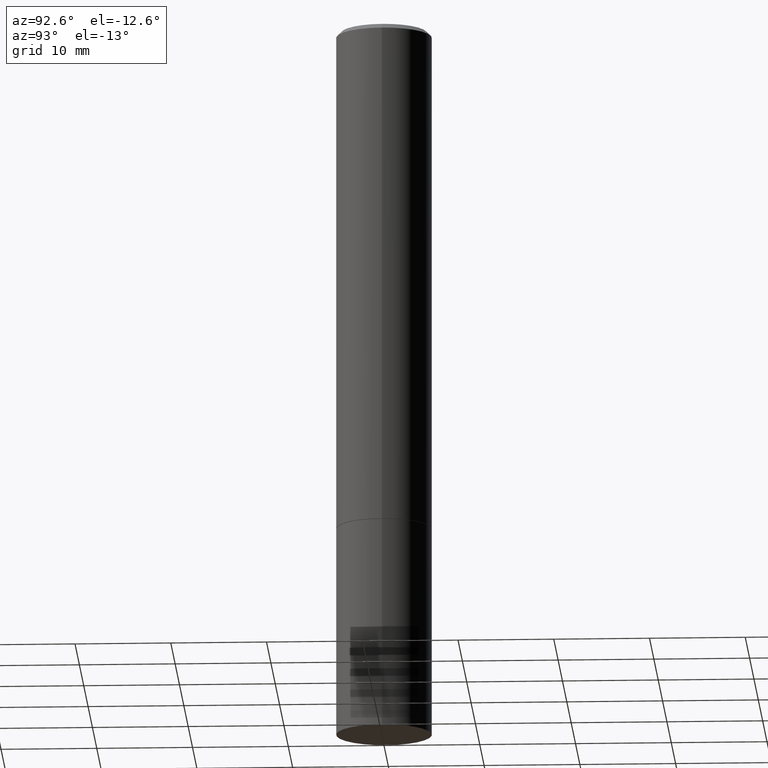
[diagram: clean part render]
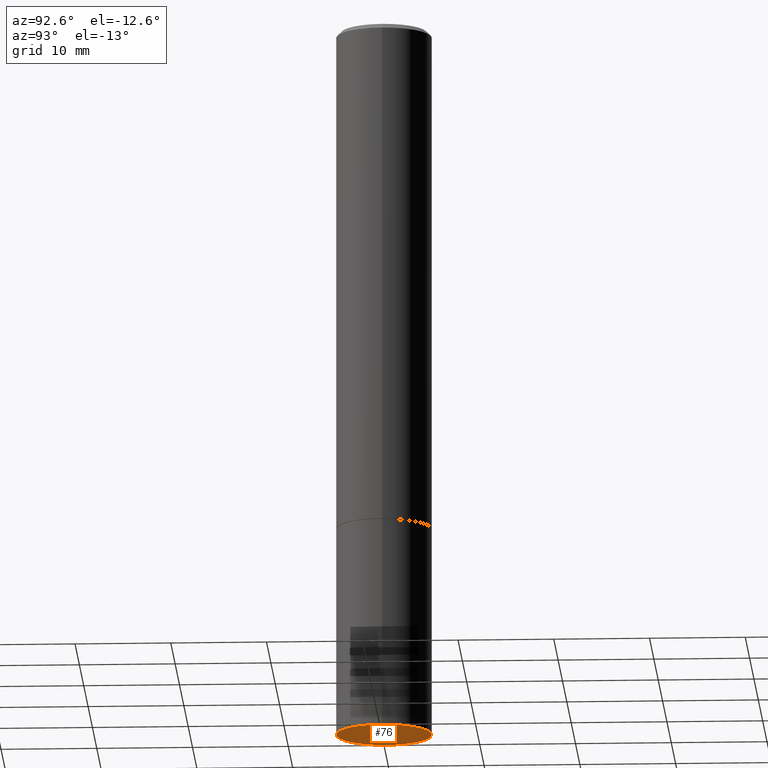
[diagram: same view with one face highlighted and labeled with its STEP entity id]
A machine part, auxiliary view. The second image highlights one B-rep face of the part: STEP entity #76.
In plain terms, the highlighted planar face has unit normal (0, -0, -1).
Its self-contained STEP definition (entity closure, byte-faithful):
#7 = PLANE ( 'NONE',  #114 ) ;
#42 = ORIENTED_EDGE ( 'NONE', *, *, #341, .F. ) ;
#43 = CARTESIAN_POINT ( 'NONE',  ( -0.1968500000000000250, -7.398956728206258518E-15, -2.952799999999999869 ) ) ;
#49 = CARTESIAN_POINT ( 'NONE',  ( 7.220980290903470182E-29, -1.030964609733603853E-14, -2.952799999999999869 ) ) ;
#73 = AXIS2_PLACEMENT_3D ( 'NONE', #49, #162, #278 ) ;
#76 = ADVANCED_FACE ( 'NONE', ( #94 ), #7, .T. ) ;
#78 = CARTESIAN_POINT ( 'NONE',  ( 7.220980290903470182E-29, -1.030964609733603853E-14, -2.952799999999999869 ) ) ;
#94 = FACE_OUTER_BOUND ( 'NONE', #234, .T. ) ;
#96 = CIRCLE ( 'NONE', #73, 0.1968500000000000250 ) ;
#104 = DIRECTION ( 'NONE',  ( -2.445468806185136597E-29, 3.491481338843145583E-15, 1.000000000000000000 ) ) ;
#114 = AXIS2_PLACEMENT_3D ( 'NONE', #211, #182, #238 ) ;
#162 = DIRECTION ( 'NONE',  ( -2.445468806185136597E-29, 3.491481338843145583E-15, 1.000000000000000000 ) ) ;
#182 = DIRECTION ( 'NONE',  ( 2.438088387897960049E-29, -3.491481338843145188E-15, -1.000000000000000000 ) ) ;
#188 = VERTEX_POINT ( 'NONE', #43 ) ;
#205 = CIRCLE ( 'NONE', #233, 0.1968500000000000250 ) ;
#211 = CARTESIAN_POINT ( 'NONE',  ( 1.374596203102613789E-15, 0.1968499999999896999, -2.952800000000000313 ) ) ;
#222 = DIRECTION ( 'NONE',  ( 1.000000000000000000, -6.982962677686267499E-15, 0.000000000000000000 ) ) ;
#232 = VERTEX_POINT ( 'NONE', #245 ) ;
#233 = AXIS2_PLACEMENT_3D ( 'NONE', #78, #104, #222 ) ;
#234 = EDGE_LOOP ( 'NONE', ( #262, #42 ) ) ;
#238 = DIRECTION ( 'NONE',  ( -1.000000000000000000, 6.982962677686265922E-15, -4.876176775795935793E-29 ) ) ;
#245 = CARTESIAN_POINT ( 'NONE',  ( 0.1968500000000000250, -1.168424230043858014E-14, -2.952799999999999869 ) ) ;
#262 = ORIENTED_EDGE ( 'NONE', *, *, #327, .F. ) ;
#278 = DIRECTION ( 'NONE',  ( 1.000000000000000000, -6.982962677686267499E-15, 0.000000000000000000 ) ) ;
#327 = EDGE_CURVE ( 'NONE', #232, #188, #205, .T. ) ;
#341 = EDGE_CURVE ( 'NONE', #188, #232, #96, .T. ) ;